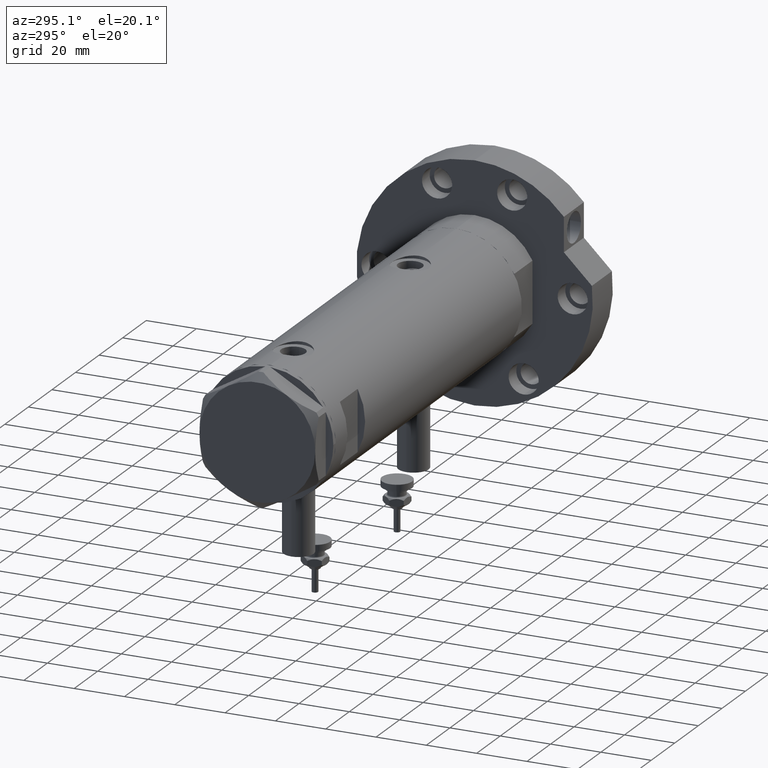
[diagram: clean part render]
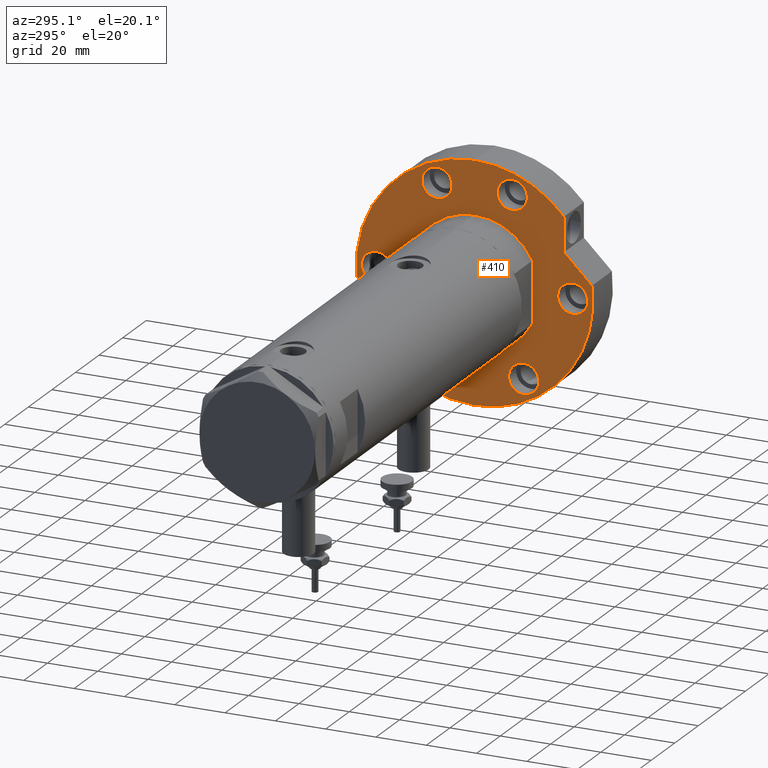
[diagram: same view with one face highlighted and labeled with its STEP entity id]
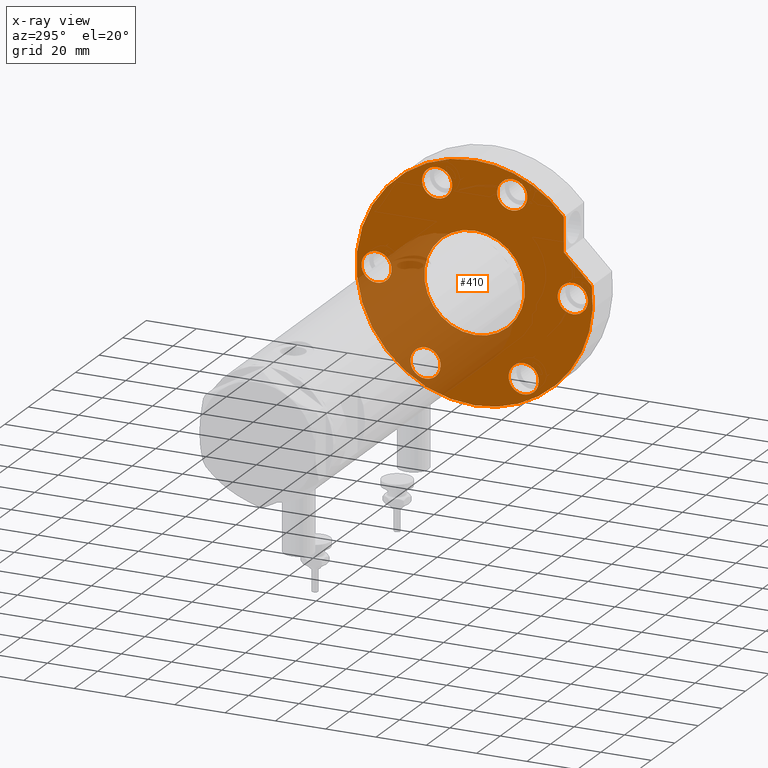
[diagram: x-ray of the same camera — body ghosted, the highlighted face saturated]
A machine part, auxiliary view. The second image highlights one B-rep face of the part: STEP entity #410.
The next image is the same camera in x-ray: the body ghosted, the highlighted face saturated — about 30% of this face is hidden behind the body in this view.
In plain terms, the highlighted planar face has unit normal (1, 0, -0).
Its self-contained STEP definition (entity closure, byte-faithful):
#286 = DIRECTION ( 'NONE',  ( 0.7071067811865511255, -0.7071067811865440200, -0.000000000000000000 ) ) ;
#307 = CARTESIAN_POINT ( 'NONE',  ( -39.77499074759302289, -19.50000000000015277, 0.000000000000000000 ) ) ;
#348 = ORIENTED_EDGE ( 'NONE', *, *, #8378, .F. ) ;
#410 = ADVANCED_FACE ( 'NONE', ( #8609, #4556, #488, #2428, #5280, #3193, #7971, #3794 ), #5855, .F. ) ;
#433 = EDGE_CURVE ( 'NONE', #4196, #3676, #7445, .T. ) ;
#485 = AXIS2_PLACEMENT_3D ( 'NONE', #2246, #1631, #4328 ) ;
#488 = FACE_BOUND ( 'NONE', #5564, .T. ) ;
#524 = EDGE_CURVE ( 'NONE', #2420, #5935, #4362, .T. ) ;
#587 = DIRECTION ( 'NONE',  ( 1.000000000000000000, 0.000000000000000000, 0.000000000000000000 ) ) ;
#670 = CARTESIAN_POINT ( 'NONE',  ( -6.000000000000000000, -39.00000000000000000, 0.000000000000000000 ) ) ;
#694 = DIRECTION ( 'NONE',  ( 1.000000000000000000, -1.019675812477181606E-15, 0.000000000000000000 ) ) ;
#718 = EDGE_LOOP ( 'NONE', ( #7797, #7921 ) ) ;
#731 = EDGE_LOOP ( 'NONE', ( #6604, #7836 ) ) ;
#777 = AXIS2_PLACEMENT_3D ( 'NONE', #7100, #8237, #1066 ) ;
#786 = VERTEX_POINT ( 'NONE', #8286 ) ;
#823 = CARTESIAN_POINT ( 'NONE',  ( 17.22217135699461110, 35.47361286101150313, 0.000000000000000000 ) ) ;
#1041 = EDGE_CURVE ( 'NONE', #2028, #3362, #6606, .T. ) ;
#1066 = DIRECTION ( 'NONE',  ( -1.000000000000000000, 0.000000000000000000, 0.000000000000000000 ) ) ;
#1095 = VERTEX_POINT ( 'NONE', #3386 ) ;
#1105 = CARTESIAN_POINT ( 'NONE',  ( 0.000000000000000000, 0.000000000000000000, 0.000000000000000000 ) ) ;
#1126 = DIRECTION ( 'NONE',  ( -1.000000000000000000, 0.000000000000000000, 0.000000000000000000 ) ) ;
#1212 = CARTESIAN_POINT ( 'NONE',  ( 42.03130176794011419, -14.92465386223865842, 0.000000000000000000 ) ) ;
#1272 = DIRECTION ( 'NONE',  ( 0.000000000000000000, 0.000000000000000000, -1.000000000000000000 ) ) ;
#1379 = DIRECTION ( 'NONE',  ( -1.000000000000000000, 0.000000000000000000, 0.000000000000000000 ) ) ;
#1383 = ORIENTED_EDGE ( 'NONE', *, *, #7114, .F. ) ;
#1495 = ORIENTED_EDGE ( 'NONE', *, *, #7845, .T. ) ;
#1504 = CARTESIAN_POINT ( 'NONE',  ( 30.83217135699462830, 35.47361286101148892, 0.000000000000000000 ) ) ;
#1541 = AXIS2_PLACEMENT_3D ( 'NONE', #3146, #2078, #1379 ) ;
#1576 = CIRCLE ( 'NONE', #3559, 5.999999999999998224 ) ;
#1593 = VERTEX_POINT ( 'NONE', #8259 ) ;
#1631 = DIRECTION ( 'NONE',  ( 0.000000000000000000, 0.000000000000000000, -1.000000000000000000 ) ) ;
#1655 = CARTESIAN_POINT ( 'NONE',  ( 6.092310621118299352, 46.60347359688769586, 0.000000000000000000 ) ) ;
#1784 = CARTESIAN_POINT ( 'NONE',  ( -33.77499074759315079, 19.49999999999992539, 0.000000000000000000 ) ) ;
#1861 = ORIENTED_EDGE ( 'NONE', *, *, #8056, .T. ) ;
#1890 = AXIS2_PLACEMENT_3D ( 'NONE', #4507, #4464, #3145 ) ;
#1971 = EDGE_CURVE ( 'NONE', #1593, #6959, #3951, .T. ) ;
#2009 = CIRCLE ( 'NONE', #6929, 5.999999999999998224 ) ;
#2022 = CIRCLE ( 'NONE', #1890, 46.99999999999999289 ) ;
#2028 = VERTEX_POINT ( 'NONE', #1655 ) ;
#2030 = CIRCLE ( 'NONE', #485, 5.999999999999998224 ) ;
#2035 = VECTOR ( 'NONE', #286, 999.9999999999998863 ) ;
#2078 = DIRECTION ( 'NONE',  ( 0.000000000000000000, 0.000000000000000000, -1.000000000000000000 ) ) ;
#2122 = VERTEX_POINT ( 'NONE', #7125 ) ;
#2185 = CIRCLE ( 'NONE', #2893, 6.000000000000005329 ) ;
#2239 = CARTESIAN_POINT ( 'NONE',  ( 17.22217135699460755, 35.47361286101150313, 0.000000000000000000 ) ) ;
#2246 = CARTESIAN_POINT ( 'NONE',  ( 36.03130176794011419, -14.92465386223865842, 0.000000000000000000 ) ) ;
#2248 = AXIS2_PLACEMENT_3D ( 'NONE', #4071, #5207, #587 ) ;
#2382 = EDGE_LOOP ( 'NONE', ( #1383, #5478 ) ) ;
#2420 = VERTEX_POINT ( 'NONE', #3717 ) ;
#2428 = FACE_BOUND ( 'NONE', #2382, .T. ) ;
#2441 = CARTESIAN_POINT ( 'NONE',  ( 0.000000000000000000, 0.000000000000000000, 0.000000000000000000 ) ) ;
#2503 = DIRECTION ( 'NONE',  ( 1.000000000000000000, 0.000000000000000000, 0.000000000000000000 ) ) ;
#2541 = CARTESIAN_POINT ( 'NONE',  ( -33.77499074759302289, -19.50000000000015277, 0.000000000000000000 ) ) ;
#2561 = VERTEX_POINT ( 'NONE', #4641 ) ;
#2678 = ORIENTED_EDGE ( 'NONE', *, *, #3191, .T. ) ;
#2714 = AXIS2_PLACEMENT_3D ( 'NONE', #2441, #5119, #3159 ) ;
#2726 = LINE ( 'NONE', #3561, #2035 ) ;
#2744 = AXIS2_PLACEMENT_3D ( 'NONE', #4810, #5533, #8184 ) ;
#2764 = VERTEX_POINT ( 'NONE', #1504 ) ;
#2800 = CARTESIAN_POINT ( 'NONE',  ( 0.000000000000000000, 39.00000000000000000, 0.000000000000000000 ) ) ;
#2882 = CIRCLE ( 'NONE', #2744, 6.000000000000000000 ) ;
#2893 = AXIS2_PLACEMENT_3D ( 'NONE', #5460, #5423, #8111 ) ;
#2973 = ORIENTED_EDGE ( 'NONE', *, *, #433, .F. ) ;
#3017 = ORIENTED_EDGE ( 'NONE', *, *, #4608, .F. ) ;
#3034 = AXIS2_PLACEMENT_3D ( 'NONE', #7914, #3257, #7219 ) ;
#3127 = DIRECTION ( 'NONE',  ( 0.000000000000000000, 0.000000000000000000, -1.000000000000000000 ) ) ;
#3145 = DIRECTION ( 'NONE',  ( 1.000000000000000000, 0.000000000000000000, 0.000000000000000000 ) ) ;
#3146 = CARTESIAN_POINT ( 'NONE',  ( -33.77499074759315079, 19.49999999999992539, 0.000000000000000000 ) ) ;
#3159 = DIRECTION ( 'NONE',  ( 1.000000000000000000, 0.000000000000000000, 0.000000000000000000 ) ) ;
#3191 = EDGE_CURVE ( 'NONE', #6407, #2764, #5397, .T. ) ;
#3193 = FACE_BOUND ( 'NONE', #4420, .T. ) ;
#3257 = DIRECTION ( 'NONE',  ( 0.000000000000000000, 0.000000000000000000, -1.000000000000000000 ) ) ;
#3339 = DIRECTION ( 'NONE',  ( 0.000000000000000000, 0.000000000000000000, -1.000000000000000000 ) ) ;
#3362 = VERTEX_POINT ( 'NONE', #6322 ) ;
#3386 = CARTESIAN_POINT ( 'NONE',  ( 46.99999999999999289, 5.755839955992559063E-15, 0.000000000000000000 ) ) ;
#3402 = EDGE_CURVE ( 'NONE', #2122, #786, #1576, .T. ) ;
#3515 = CARTESIAN_POINT ( 'NONE',  ( -39.77499074759315079, 19.49999999999992539, 0.000000000000000000 ) ) ;
#3518 = EDGE_LOOP ( 'NONE', ( #1861, #2678, #5190, #3688, #8555 ) ) ;
#3537 = AXIS2_PLACEMENT_3D ( 'NONE', #5349, #8038, #4713 ) ;
#3559 = AXIS2_PLACEMENT_3D ( 'NONE', #3610, #5782, #5601 ) ;
#3561 = CARTESIAN_POINT ( 'NONE',  ( 17.22217135699461110, 35.47361286101150313, 0.000000000000000000 ) ) ;
#3589 = EDGE_CURVE ( 'NONE', #8230, #5116, #7484, .T. ) ;
#3610 = CARTESIAN_POINT ( 'NONE',  ( 36.03130176794011419, 14.92465386223865842, 0.000000000000000000 ) ) ;
#3652 = DIRECTION ( 'NONE',  ( -1.000000000000000000, 0.000000000000000000, 0.000000000000000000 ) ) ;
#3676 = VERTEX_POINT ( 'NONE', #3515 ) ;
#3688 = ORIENTED_EDGE ( 'NONE', *, *, #7418, .F. ) ;
#3717 = CARTESIAN_POINT ( 'NONE',  ( -27.77499074759301578, -19.50000000000015277, 0.000000000000000000 ) ) ;
#3722 = EDGE_CURVE ( 'NONE', #7454, #4525, #7359, .T. ) ;
#3737 = AXIS2_PLACEMENT_3D ( 'NONE', #5743, #4454, #2503 ) ;
#3794 = FACE_OUTER_BOUND ( 'NONE', #3518, .T. ) ;
#3951 = CIRCLE ( 'NONE', #3537, 20.00000000000000000 ) ;
#3960 = DIRECTION ( 'NONE',  ( -1.000000000000000000, 0.000000000000000000, 0.000000000000000000 ) ) ;
#4036 = DIRECTION ( 'NONE',  ( 0.000000000000000000, 0.000000000000000000, -1.000000000000000000 ) ) ;
#4052 = ORIENTED_EDGE ( 'NONE', *, *, #3589, .F. ) ;
#4064 = EDGE_CURVE ( 'NONE', #1095, #2764, #4262, .T. ) ;
#4071 = CARTESIAN_POINT ( 'NONE',  ( 0.000000000000000000, 0.000000000000000000, 0.000000000000000000 ) ) ;
#4196 = VERTEX_POINT ( 'NONE', #7014 ) ;
#4262 = CIRCLE ( 'NONE', #2714, 46.99999999999999289 ) ;
#4328 = DIRECTION ( 'NONE',  ( -1.000000000000000000, 0.000000000000000000, 0.000000000000000000 ) ) ;
#4362 = CIRCLE ( 'NONE', #8001, 6.000000000000005329 ) ;
#4403 = AXIS2_PLACEMENT_3D ( 'NONE', #6500, #7263, #1126 ) ;
#4420 = EDGE_LOOP ( 'NONE', ( #3017, #2973 ) ) ;
#4454 = DIRECTION ( 'NONE',  ( 0.000000000000000000, 0.000000000000000000, 1.000000000000000000 ) ) ;
#4464 = DIRECTION ( 'NONE',  ( 0.000000000000000000, 0.000000000000000000, 1.000000000000000000 ) ) ;
#4507 = CARTESIAN_POINT ( 'NONE',  ( 0.000000000000000000, 0.000000000000000000, 0.000000000000000000 ) ) ;
#4525 = VERTEX_POINT ( 'NONE', #6901 ) ;
#4551 = VECTOR ( 'NONE', #694, 1000.000000000000000 ) ;
#4556 = FACE_BOUND ( 'NONE', #718, .T. ) ;
#4608 = EDGE_CURVE ( 'NONE', #3676, #4196, #2009, .T. ) ;
#4641 = CARTESIAN_POINT ( 'NONE',  ( 6.000000000000000000, -39.00000000000000000, 0.000000000000000000 ) ) ;
#4713 = DIRECTION ( 'NONE',  ( 1.000000000000000000, 0.000000000000000000, 0.000000000000000000 ) ) ;
#4810 = CARTESIAN_POINT ( 'NONE',  ( 0.000000000000000000, -39.00000000000000000, 0.000000000000000000 ) ) ;
#4940 = ORIENTED_EDGE ( 'NONE', *, *, #3722, .F. ) ;
#5076 = ORIENTED_EDGE ( 'NONE', *, *, #1971, .T. ) ;
#5116 = VERTEX_POINT ( 'NONE', #5718 ) ;
#5119 = DIRECTION ( 'NONE',  ( 0.000000000000000000, 0.000000000000000000, 1.000000000000000000 ) ) ;
#5190 = ORIENTED_EDGE ( 'NONE', *, *, #4064, .F. ) ;
#5207 = DIRECTION ( 'NONE',  ( 0.000000000000000000, 0.000000000000000000, 1.000000000000000000 ) ) ;
#5217 = DIRECTION ( 'NONE',  ( -1.000000000000000000, 0.000000000000000000, 0.000000000000000000 ) ) ;
#5280 = FACE_BOUND ( 'NONE', #731, .T. ) ;
#5349 = CARTESIAN_POINT ( 'NONE',  ( 0.000000000000000000, 0.000000000000000000, 0.000000000000000000 ) ) ;
#5397 = LINE ( 'NONE', #823, #4551 ) ;
#5423 = DIRECTION ( 'NONE',  ( 0.000000000000000000, 0.000000000000000000, -1.000000000000000000 ) ) ;
#5442 = CARTESIAN_POINT ( 'NONE',  ( 6.000000000000000888, 39.00000000000000000, 0.000000000000000000 ) ) ;
#5460 = CARTESIAN_POINT ( 'NONE',  ( -33.77499074759302289, -19.50000000000015277, 0.000000000000000000 ) ) ;
#5478 = ORIENTED_EDGE ( 'NONE', *, *, #6175, .F. ) ;
#5533 = DIRECTION ( 'NONE',  ( 0.000000000000000000, 0.000000000000000000, -1.000000000000000000 ) ) ;
#5564 = EDGE_LOOP ( 'NONE', ( #8432, #4052 ) ) ;
#5601 = DIRECTION ( 'NONE',  ( -1.000000000000000000, 0.000000000000000000, 0.000000000000000000 ) ) ;
#5718 = CARTESIAN_POINT ( 'NONE',  ( 30.03130176794011774, -14.92465386223865842, 0.000000000000000000 ) ) ;
#5743 = CARTESIAN_POINT ( 'NONE',  ( 0.000000000000000000, 0.000000000000000000, 0.000000000000000000 ) ) ;
#5782 = DIRECTION ( 'NONE',  ( 0.000000000000000000, 0.000000000000000000, -1.000000000000000000 ) ) ;
#5855 = PLANE ( 'NONE',  #6473 ) ;
#5935 = VERTEX_POINT ( 'NONE', #307 ) ;
#6013 = EDGE_CURVE ( 'NONE', #5116, #8230, #2030, .T. ) ;
#6175 = EDGE_CURVE ( 'NONE', #2561, #7060, #8328, .T. ) ;
#6260 = CIRCLE ( 'NONE', #777, 6.000000000000000888 ) ;
#6322 = CARTESIAN_POINT ( 'NONE',  ( -46.99999999999999289, 0.000000000000000000, 0.000000000000000000 ) ) ;
#6375 = AXIS2_PLACEMENT_3D ( 'NONE', #7278, #1272, #3960 ) ;
#6407 = VERTEX_POINT ( 'NONE', #2239 ) ;
#6473 = AXIS2_PLACEMENT_3D ( 'NONE', #1105, #8521, #7234 ) ;
#6500 = CARTESIAN_POINT ( 'NONE',  ( 36.03130176794011419, -14.92465386223865842, 0.000000000000000000 ) ) ;
#6604 = ORIENTED_EDGE ( 'NONE', *, *, #8313, .F. ) ;
#6606 = CIRCLE ( 'NONE', #2248, 46.99999999999999289 ) ;
#6820 = CIRCLE ( 'NONE', #3034, 5.999999999999998224 ) ;
#6901 = CARTESIAN_POINT ( 'NONE',  ( -6.000000000000000888, 39.00000000000000000, 0.000000000000000000 ) ) ;
#6929 = AXIS2_PLACEMENT_3D ( 'NONE', #1784, #3127, #3652 ) ;
#6959 = VERTEX_POINT ( 'NONE', #7369 ) ;
#7014 = CARTESIAN_POINT ( 'NONE',  ( -27.77499074759315434, 19.49999999999992539, 0.000000000000000000 ) ) ;
#7060 = VERTEX_POINT ( 'NONE', #670 ) ;
#7100 = CARTESIAN_POINT ( 'NONE',  ( 0.000000000000000000, 39.00000000000000000, 0.000000000000000000 ) ) ;
#7114 = EDGE_CURVE ( 'NONE', #7060, #2561, #2882, .T. ) ;
#7125 = CARTESIAN_POINT ( 'NONE',  ( 42.03130176794011419, 14.92465386223865842, 0.000000000000000000 ) ) ;
#7219 = DIRECTION ( 'NONE',  ( -1.000000000000000000, 0.000000000000000000, 0.000000000000000000 ) ) ;
#7234 = DIRECTION ( 'NONE',  ( 1.000000000000000000, 0.000000000000000000, -0.000000000000000000 ) ) ;
#7263 = DIRECTION ( 'NONE',  ( 0.000000000000000000, 0.000000000000000000, -1.000000000000000000 ) ) ;
#7278 = CARTESIAN_POINT ( 'NONE',  ( 0.000000000000000000, -39.00000000000000000, 0.000000000000000000 ) ) ;
#7359 = CIRCLE ( 'NONE', #7625, 6.000000000000000888 ) ;
#7369 = CARTESIAN_POINT ( 'NONE',  ( 20.00000000000000000, 0.000000000000000000, 0.000000000000000000 ) ) ;
#7418 = EDGE_CURVE ( 'NONE', #3362, #1095, #2022, .T. ) ;
#7445 = CIRCLE ( 'NONE', #1541, 5.999999999999998224 ) ;
#7454 = VERTEX_POINT ( 'NONE', #5442 ) ;
#7484 = CIRCLE ( 'NONE', #4403, 5.999999999999998224 ) ;
#7625 = AXIS2_PLACEMENT_3D ( 'NONE', #2800, #4036, #8026 ) ;
#7705 = EDGE_LOOP ( 'NONE', ( #1495, #5076 ) ) ;
#7797 = ORIENTED_EDGE ( 'NONE', *, *, #7853, .F. ) ;
#7836 = ORIENTED_EDGE ( 'NONE', *, *, #524, .F. ) ;
#7845 = EDGE_CURVE ( 'NONE', #6959, #1593, #8076, .T. ) ;
#7853 = EDGE_CURVE ( 'NONE', #786, #2122, #6820, .T. ) ;
#7914 = CARTESIAN_POINT ( 'NONE',  ( 36.03130176794011419, 14.92465386223865842, 0.000000000000000000 ) ) ;
#7921 = ORIENTED_EDGE ( 'NONE', *, *, #3402, .F. ) ;
#7971 = FACE_BOUND ( 'NONE', #7705, .T. ) ;
#8001 = AXIS2_PLACEMENT_3D ( 'NONE', #2541, #3339, #5217 ) ;
#8026 = DIRECTION ( 'NONE',  ( -1.000000000000000000, 0.000000000000000000, 0.000000000000000000 ) ) ;
#8038 = DIRECTION ( 'NONE',  ( 0.000000000000000000, 0.000000000000000000, 1.000000000000000000 ) ) ;
#8056 = EDGE_CURVE ( 'NONE', #2028, #6407, #2726, .T. ) ;
#8076 = CIRCLE ( 'NONE', #3737, 20.00000000000000000 ) ;
#8111 = DIRECTION ( 'NONE',  ( -1.000000000000000000, 0.000000000000000000, 0.000000000000000000 ) ) ;
#8184 = DIRECTION ( 'NONE',  ( -1.000000000000000000, 0.000000000000000000, 0.000000000000000000 ) ) ;
#8230 = VERTEX_POINT ( 'NONE', #1212 ) ;
#8237 = DIRECTION ( 'NONE',  ( 0.000000000000000000, 0.000000000000000000, -1.000000000000000000 ) ) ;
#8259 = CARTESIAN_POINT ( 'NONE',  ( -20.00000000000000000, 2.449293598294706513E-15, 0.000000000000000000 ) ) ;
#8274 = EDGE_LOOP ( 'NONE', ( #348, #4940 ) ) ;
#8286 = CARTESIAN_POINT ( 'NONE',  ( 30.03130176794011774, 14.92465386223865842, 0.000000000000000000 ) ) ;
#8313 = EDGE_CURVE ( 'NONE', #5935, #2420, #2185, .T. ) ;
#8328 = CIRCLE ( 'NONE', #6375, 6.000000000000000000 ) ;
#8378 = EDGE_CURVE ( 'NONE', #4525, #7454, #6260, .T. ) ;
#8432 = ORIENTED_EDGE ( 'NONE', *, *, #6013, .F. ) ;
#8521 = DIRECTION ( 'NONE',  ( 0.000000000000000000, 0.000000000000000000, 1.000000000000000000 ) ) ;
#8555 = ORIENTED_EDGE ( 'NONE', *, *, #1041, .F. ) ;
#8609 = FACE_BOUND ( 'NONE', #8274, .T. ) ;